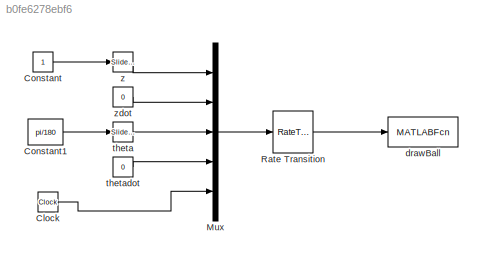
MODEL slx_b0fe6278ebf6
KIND model
CONFIG AbsTol = auto
CONFIG EnableMultiTasking = off
CONFIG FixedStep = auto
CONFIG MaxStep = 0.1
CONFIG MinStep = auto
CONFIG RelTol = 1e-3
CONFIG SampleTimeConstraint = Unconstrained
CONFIG Solver = ode45
CONFIG SolverName = ode45
CONFIG StartTime = 0.0
CONFIG StopTime = 10000
BLOCK [Clock] Clock
BLOCK [Constant] Constant
BLOCK [Constant] Constant1
  Value = pi/180
BLOCK [Mux] Mux
  DisplayOption = bar
  Inputs = 5
  Ports = [5, 1]
BLOCK [RateTransition] Rate Transition
  OutPortSampleTime = P.t_plot
  OutPortSampleTimeMultiple = P.t_plot
BLOCK [MATLABFcn] drawBall
  MATLABFcn = ball_on_beam_animation(u)
  OutputDimensions = 0
  Ports = [1]
BLOCK [Reference] theta  REF=simulink/Math
Operations/Slider
Gain
  Ports = [1, 1]
  SourceBlock = simulink/Math\nOperations/Slider\nGain
  SourceProductBaseCode = SL
  SourceProductName = Simulink
  SourceType = Slider Gain
BLOCK [Constant] thetadot 
  Value = 0
BLOCK [Reference] z  REF=simulink/Math
Operations/Slider
Gain
  Ports = [1, 1]
  SourceBlock = simulink/Math\nOperations/Slider\nGain
  SourceProductBaseCode = SL
  SourceProductName = Simulink
  SourceType = Slider Gain
BLOCK [Constant] zdot
  Value = 0
LINE Clock:1 -> Mux:5
LINE Constant1:1 -> theta:1
LINE Constant:1 -> z:1
LINE Mux:1 -> Rate Transition:1
LINE Rate Transition:1 -> drawBall:1
LINE theta:1 -> Mux:3
LINE thetadot :1 -> Mux:4
LINE z:1 -> Mux:1
LINE zdot:1 -> Mux:2
